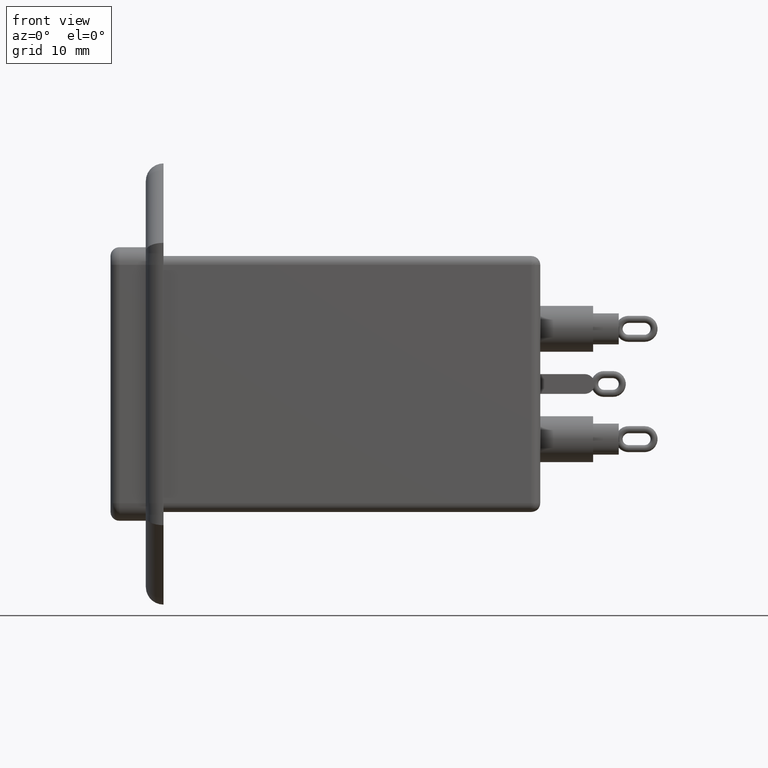
[diagram: clean part render]
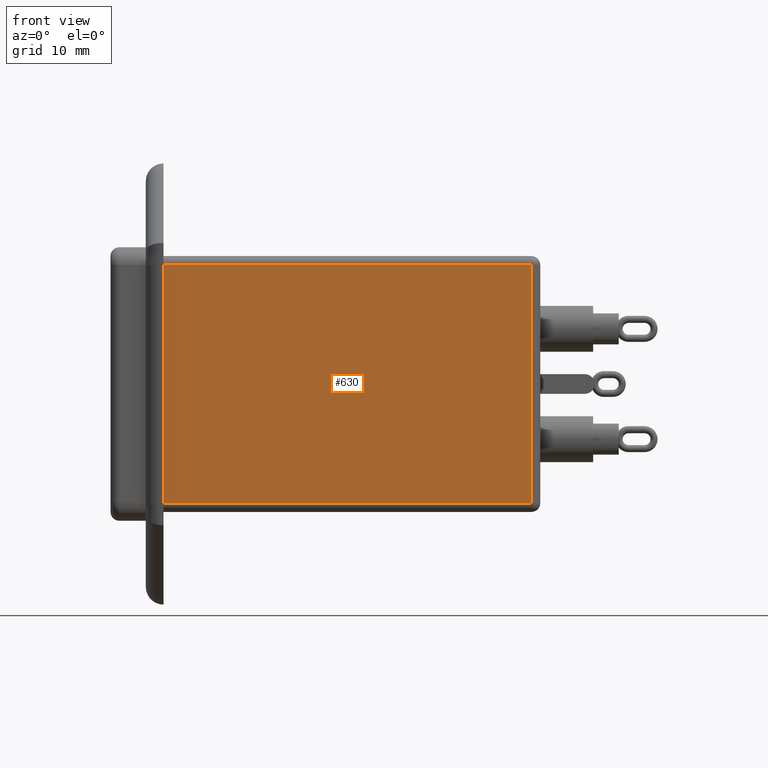
[diagram: same view with one face highlighted and labeled with its STEP entity id]
A machine part, front view. The second image highlights one B-rep face of the part: STEP entity #630.
In plain terms, the highlighted planar face has unit normal (-0, 1, 0).
Its self-contained STEP definition (entity closure, byte-faithful):
#21 = ORIENTED_EDGE ( 'NONE', *, *, #2809, .T. ) ;
#33 = ORIENTED_EDGE ( 'NONE', *, *, #1069, .T. ) ;
#157 = CARTESIAN_POINT ( 'NONE',  ( 47.70000000000000300, -21.00000000000000000, 29.99999999999999300 ) ) ;
#223 = LINE ( 'NONE', #157, #5983 ) ;
#630 = ADVANCED_FACE ( 'NONE', ( #5765 ), #7292, .F. ) ;
#877 = CARTESIAN_POINT ( 'NONE',  ( 48.70000000000000300, -21.00000000000000000, 28.99999999999998900 ) ) ;
#967 = DIRECTION ( 'NONE',  ( 1.000000000000000000, -0.0000000000000000000, -0.0000000000000000000 ) ) ;
#1069 = EDGE_CURVE ( 'NONE', #6864, #5408, #1740, .T. ) ;
#1623 = LINE ( 'NONE', #877, #5267 ) ;
#1740 = LINE ( 'NONE', #4477, #3455 ) ;
#1904 = LINE ( 'NONE', #6400, #7948 ) ;
#2520 = ORIENTED_EDGE ( 'NONE', *, *, #6174, .T. ) ;
#2557 = CARTESIAN_POINT ( 'NONE',  ( 6.000000000000000000, -21.00000000000000000, 28.99999999999998900 ) ) ;
#2703 = DIRECTION ( 'NONE',  ( 0.0000000000000000000, 0.0000000000000000000, -1.000000000000000000 ) ) ;
#2809 = EDGE_CURVE ( 'NONE', #5341, #7691, #1623, .T. ) ;
#3455 = VECTOR ( 'NONE', #967, 1000.000000000000000 ) ;
#3571 = DIRECTION ( 'NONE',  ( 0.0000000000000000000, -0.0000000000000000000, 1.000000000000000000 ) ) ;
#3797 = EDGE_CURVE ( 'NONE', #5408, #5341, #223, .T. ) ;
#4254 = CARTESIAN_POINT ( 'NONE',  ( 47.70000000000000300, -21.00000000000000000, 28.99999999999998900 ) ) ;
#4405 = EDGE_LOOP ( 'NONE', ( #2520, #33, #4623, #21 ) ) ;
#4477 = CARTESIAN_POINT ( 'NONE',  ( 48.70000000000000300, -21.00000000000000000, 1.999999999999991300 ) ) ;
#4623 = ORIENTED_EDGE ( 'NONE', *, *, #3797, .T. ) ;
#5048 = CARTESIAN_POINT ( 'NONE',  ( 47.70000000000000300, -21.00000000000000000, 1.999999999999990500 ) ) ;
#5267 = VECTOR ( 'NONE', #6383, 1000.000000000000000 ) ;
#5270 = CARTESIAN_POINT ( 'NONE',  ( 6.000000000000000000, -21.00000000000000000, 1.999999999999998200 ) ) ;
#5341 = VERTEX_POINT ( 'NONE', #4254 ) ;
#5408 = VERTEX_POINT ( 'NONE', #5048 ) ;
#5511 = CARTESIAN_POINT ( 'NONE',  ( 48.70000000000000300, -21.00000000000000000, 29.99999999999999300 ) ) ;
#5765 = FACE_OUTER_BOUND ( 'NONE', #4405, .T. ) ;
#5983 = VECTOR ( 'NONE', #7547, 1000.000000000000000 ) ;
#6174 = EDGE_CURVE ( 'NONE', #7691, #6864, #1904, .T. ) ;
#6383 = DIRECTION ( 'NONE',  ( -1.000000000000000000, 0.0000000000000000000, 0.0000000000000000000 ) ) ;
#6400 = CARTESIAN_POINT ( 'NONE',  ( 6.000000000000000000, -21.00000000000000000, 29.99999999999999300 ) ) ;
#6864 = VERTEX_POINT ( 'NONE', #5270 ) ;
#6950 = AXIS2_PLACEMENT_3D ( 'NONE', #5511, #7269, #3571 ) ;
#7269 = DIRECTION ( 'NONE',  ( -0.0000000000000000000, 1.000000000000000000, 0.0000000000000000000 ) ) ;
#7292 = PLANE ( 'NONE',  #6950 ) ;
#7547 = DIRECTION ( 'NONE',  ( -0.0000000000000000000, -0.0000000000000000000, 1.000000000000000000 ) ) ;
#7691 = VERTEX_POINT ( 'NONE', #2557 ) ;
#7948 = VECTOR ( 'NONE', #2703, 1000.000000000000000 ) ;